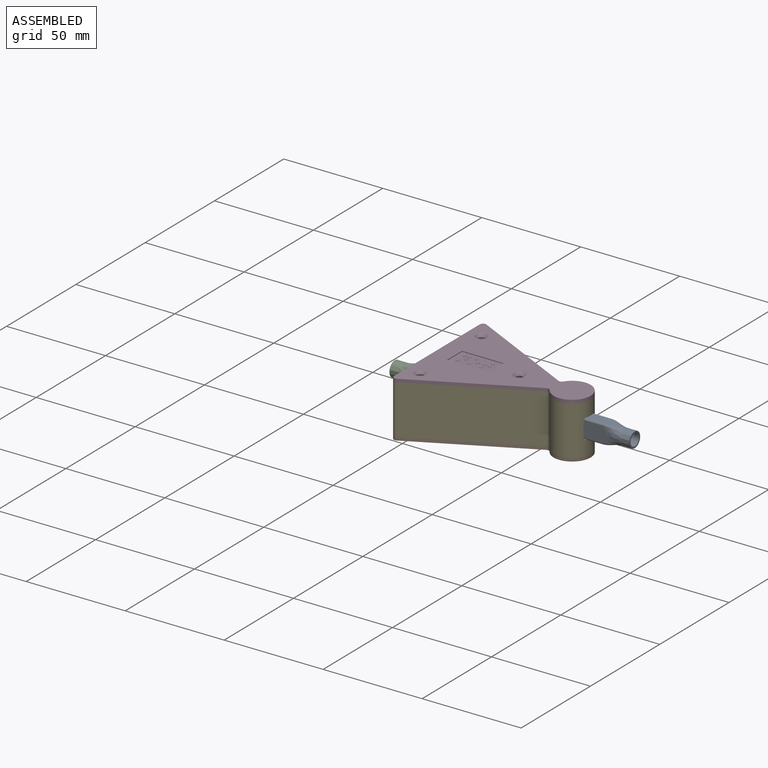
[diagram: assembled view]
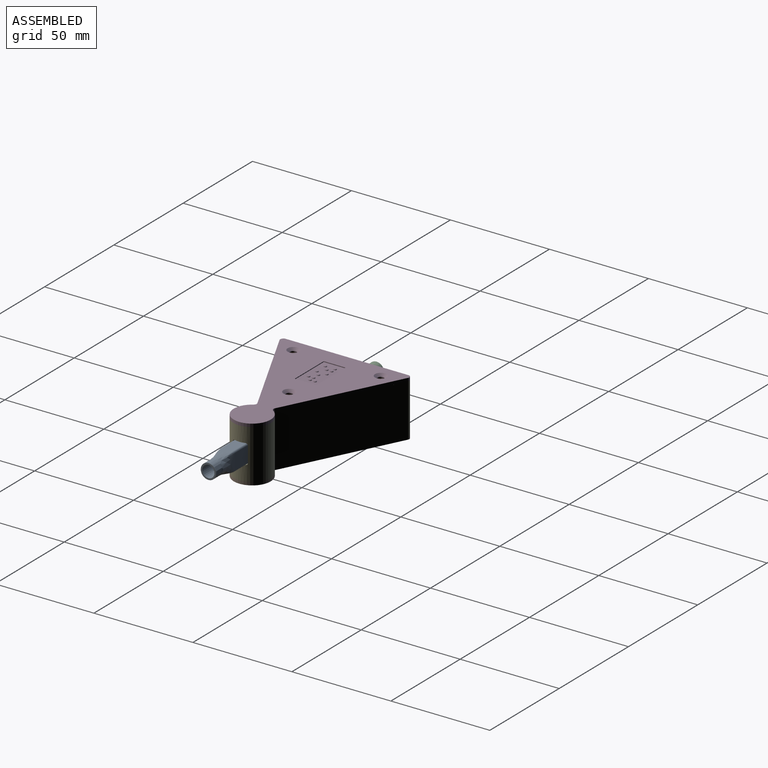
[diagram: assembled view, second angle]
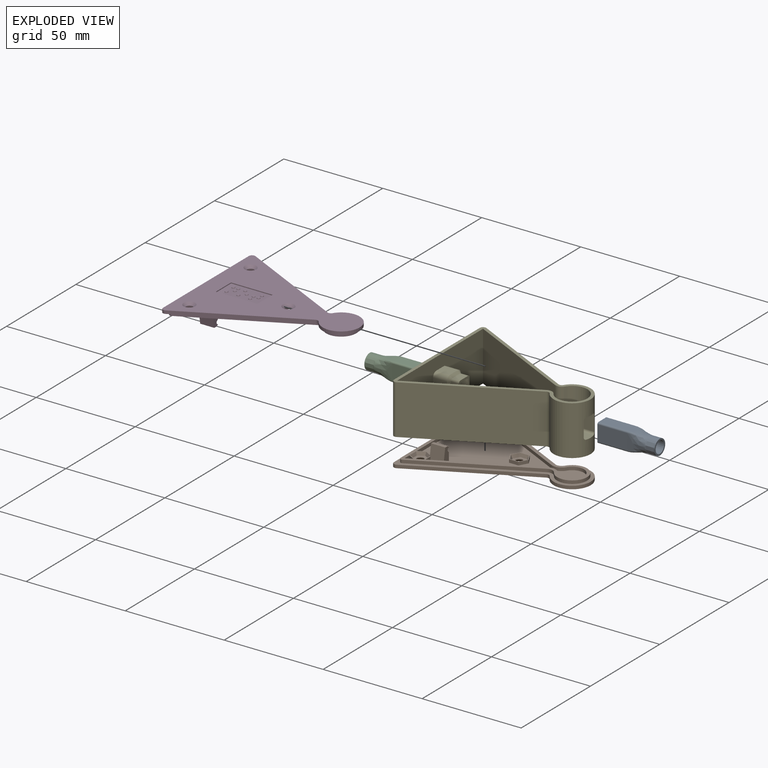
[diagram: exploded view]
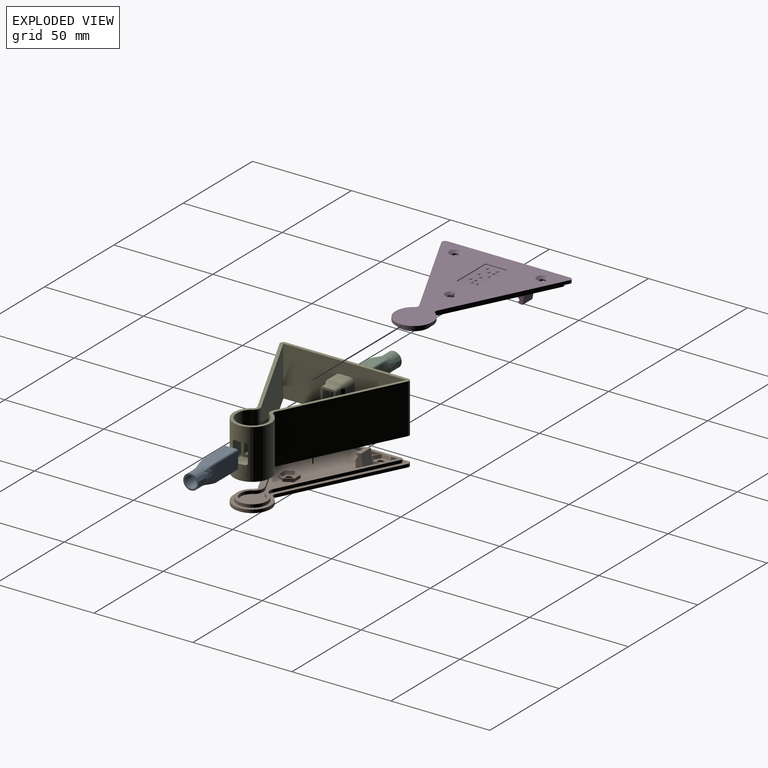
[diagram: exploded view, second angle]
ASSEMBLY  parts=5 mates=3
PART A: 39 faces, bbox 7.7x29.1x9.5 mm
  f0: plane 15.1x5.4mm, normal (0,0,-1), area 81.5mm2, adj f3,f19,f31,f33
  f1: plane 14.1x7.9mm, normal (-1,0,0), area 111.4mm2, adj f2,f3,f7,f9
  f2: plane 14.1x5.4mm, normal (0,0,1), area 76.1mm2, adj f1,f3,f8,f9
  f3: plane 9.5x7mm, normal (0,-1,0), area 23.3mm2, adj f0,f1,f2,f4,f5,f6,f7,f8
  f4: plane 15.1x7.9mm, normal (-1,0,0), area 119.3mm2, adj f3,f21,f31,f35
  f5: plane 15.1x7.9mm, normal (1,0,0), area 119.3mm2, adj f3,f16,f33,f37
  f6: plane 15.1x5.4mm, normal (0,0,1), area 81.5mm2, adj f3,f14,f35,f37
  f7: plane 14.1x5.4mm, normal (0,0,-1), area 76.1mm2, adj f1,f3,f8,f9
  f8: plane 14.1x7.9mm, normal (1,0,0), area 111.4mm2, adj f2,f3,f7,f9
  f9: plane 7.9x5.4mm, normal (0,-1,0), area 10mm2, adj f1,f2,f7,f8,f10,f11,f12,f13
  f10: plane 7.1x1mm, normal (-1,0,0), area 7.1mm2, adj f9,f11,f13,f17
  f11: plane 4.6x1mm, normal (0,0,-1), area 4.6mm2, adj f9,f10,f12,f15
  f12: plane 7.1x1mm, normal (1,0,0), area 7.1mm2, adj f9,f11,f13,f20
  f13: plane 4.6x1mm, normal (0,0,1), area 4.6mm2, adj f9,f10,f12,f18
  f14: bspline ~9x7mm, area 45.2mm2, adj f6,f26,f36,f38
  f15: bspline ~9x4.6mm, area 36.4mm2, adj f11,f17,f20,f22
  f16: bspline ~9.5x9mm, area 69.4mm2, adj f5,f27,f34,f38
  f17: bspline ~9x7.1mm, area 58.2mm2, adj f10,f15,f18,f29
  f18: bspline ~9x4.6mm, area 36.4mm2, adj f13,f17,f20,f24
  f19: bspline ~9x7mm, area 45.2mm2, adj f0,f28,f32,f34
  f20: bspline ~9x7.1mm, area 58.2mm2, adj f12,f15,f18,f23
  f21: bspline ~9.5x9mm, area 69.4mm2, adj f4,f25,f32,f36
  f22: extruded ~5x3.32mm, area 17.5mm2, adj f15,f23,f29,f30
  f23: extruded ~5.12x5mm, area 30.4mm2, adj f20,f22,f24,f30
  f24: extruded ~5x3.32mm, area 17.5mm2, adj f18,f23,f29,f30
  f25: extruded ~6.46x5mm, area 38.3mm2, adj f21,f26,f28,f30
  f26: extruded ~5x4.19mm, area 22.1mm2, adj f14,f25,f27,f30
  f27: extruded ~6.46x5mm, area 38.3mm2, adj f16,f26,f28,f30
  f28: extruded ~5x4.19mm, area 22.1mm2, adj f19,f25,f27,f30
  f29: extruded ~5.12x5mm, area 30.4mm2, adj f17,f22,f24,f30
  f30: plane 7.7x7.7mm, normal (0,1,0), area 17.3mm2, adj f22,f23,f24,f25,f26,f27,f28,f29
  f31: cylinder r=0.8mm len=15.1mm, axis (0,-1,0), area 19mm2, adj f0,f3,f4,f32
  f32: bspline ~10.88x1.52mm, area 4.5mm2, adj f19,f21,f31
  f33: cylinder r=0.8mm len=15.1mm, axis (0,1,0), area 19mm2, adj f0,f3,f5,f34
  f34: bspline ~10.88x1.52mm, area 4.5mm2, adj f16,f19,f33
  f35: cylinder r=0.8mm len=15.1mm, axis (0,1,0), area 19mm2, adj f3,f4,f6,f36
  f36: bspline ~10.88x1.52mm, area 4.5mm2, adj f14,f21,f35
  f37: cylinder r=0.8mm len=15.1mm, axis (0,-1,0), area 19mm2, adj f3,f5,f6,f38
  f38: bspline ~10.88x1.52mm, area 4.5mm2, adj f14,f16,f37
PART B: 121 faces, bbox 77.7x65.2x9 mm
  f0: sphere r=0.81mm, area 2mm2, adj f109,f120
  f1: sphere r=0.81mm, area 2mm2, adj f109,f119
  f2: sphere r=0.81mm, area 2mm2, adj f109,f118
  f3: sphere r=0.81mm, area 2mm2, adj f109,f117
  f4: sphere r=0.81mm, area 2mm2, adj f109,f116
  f5: sphere r=0.81mm, area 2mm2, adj f109,f115
  f6: sphere r=0.81mm, area 2mm2, adj f109,f114
  f7: sphere r=0.81mm, area 2mm2, adj f109,f113
  f8: sphere r=0.81mm, area 2mm2, adj f109,f112
  f9: sphere r=0.81mm, area 2mm2, adj f109,f111
  f10: sphere r=0.81mm, area 2mm2, adj f109,f110
  f11: plane 70.9x41.63mm, normal (0,0,-1), area 1443.9mm2, adj f14,f16,f20,f29,f30,f31,f46,f48
  f12: plane 3.65x1.6mm, normal (1,0,0), area 5.6mm2, adj f19,f20,f35,f90
  f13: plane 6.73x3.37mm, normal (0,0,-1), area 11.3mm2, adj f16,f51,f81
  f14: plane 38.96x1.6mm, normal (1,0,0), area 62.3mm2, adj f11,f35,f46,f50
  f15: plane 3.43x1.6mm, normal (1,0,0), area 5.5mm2, adj f17,f18,f35,f52
  f16: plane 45.63x22.81mm, normal (-0.45,-0.89,0), area 81.6mm2, adj f11,f13,f29,f35,f51
  f17: plane 3.19x1.6mm, normal (-0.45,-0.89,0), area 5.7mm2, adj f15,f18,f35,f52
  f18: plane 3.43x3.19mm, normal (0,0,-1), area 5.5mm2, adj f15,f17,f52
  f19: plane 6.73x3.37mm, normal (0,0,-1), area 11.3mm2, adj f12,f20,f90
  f20: plane 45.63x22.81mm, normal (-0.45,0.89,0), area 81.6mm2, adj f11,f12,f19,f31,f35
  f21: plane 3.43x3.19mm, normal (0,0,-1), area 5.5mm2, adj f32,f33,f47
  f22: cylinder r=7.55mm len=15.1mm, axis (0,0,1), area 62.3mm2, adj f23,f34,f35,f45
  f23: cylinder r=3.4mm len=4.4mm, axis (0,0,1), area 8mm2, adj f22,f24,f35,f45
  f24: plane 54.03x27.01mm, normal (0.45,0.89,0), area 96.6mm2, adj f23,f25,f35,f45
  f25: cylinder r=1.2mm len=1.74mm, axis (0,0,1), area 3.9mm2, adj f24,f26,f35,f45
  f26: plane 57.47x1.6mm, normal (-1,0,0), area 92mm2, adj f25,f27,f35,f45
  f27: cylinder r=1.2mm len=1.74mm, axis (0,0,1), area 3.9mm2, adj f26,f28,f35,f45
  f28: plane 54.03x27.01mm, normal (0.45,-0.89,0), area 96.6mm2, adj f27,f34,f35,f45
  f29: cylinder r=5mm len=6.47mm, axis (0,0,1), area 11.8mm2, adj f11,f16,f30,f35
  f30: cylinder r=5.95mm len=11.9mm, axis (0,0,1), area 49.1mm2, adj f11,f29,f31,f35
  f31: cylinder r=5mm len=6.47mm, axis (0,0,1), area 11.8mm2, adj f11,f20,f30,f35
  f32: plane 3.19x1.6mm, normal (-0.45,0.89,0), area 5.7mm2, adj f21,f33,f35,f47
  f33: plane 3.43x1.6mm, normal (1,0,0), area 5.5mm2, adj f21,f32,f35,f47
  f34: cylinder r=3.4mm len=4.4mm, axis (0,0,1), area 8mm2, adj f22,f28,f35,f45
  f35: plane 74.1x59.87mm, normal (0,0,-1), area 376.5mm2, adj f12,f14,f15,f16,f17,f20,f22,f23
  f36: plane 77.7x65.2mm, normal (0,0,1), area 2184.7mm2, adj f37,f38,f39,f40,f41,f42,f43,f44
  f37: plane 56.05x28.03mm, normal (0.45,0.89,0), area 100.3mm2, adj f36,f38,f44,f45
  f38: cylinder r=1.6mm len=2.07mm, axis (0,0,-1), area 3.8mm2, adj f36,f37,f39,f45
  f39: cylinder r=9.35mm len=18.7mm, axis (0,0,-1), area 77.2mm2, adj f36,f38,f40,f45
  f40: cylinder r=1.6mm len=2.07mm, axis (0,0,-1), area 3.8mm2, adj f36,f39,f41,f45
  f41: plane 56.05x28.03mm, normal (0.45,-0.89,0), area 100.3mm2, adj f36,f40,f42,f45
  f42: cylinder r=1.6mm len=2.32mm, axis (0,0,-1), area 5.2mm2, adj f36,f41,f43,f45
  f43: plane 62x1.6mm, normal (-1,0,0), area 99.2mm2, adj f36,f42,f44,f45
  f44: cylinder r=1.6mm len=2.32mm, axis (0,0,-1), area 5.2mm2, adj f36,f37,f43,f45
  f45: plane 77.7x65.2mm, normal (0,0,-1), area 435.7mm2, adj f22,f23,f24,f25,f26,f27,f28,f34
  f46: plane 3.72x2.15mm, normal (-0.5,0.87,0), area 6.9mm2, adj f11,f14,f35,f48
  f47: plane 3.19x1.84mm, normal (-0.5,-0.87,0), area 5.9mm2, adj f21,f32,f33,f35
  f48: plane 3.7x2.14mm, normal (0.5,0.87,0), area 6.8mm2, adj f11,f35,f46,f91
  f49: plane 7.07x6.12mm, normal (0,0,-1), area 23.4mm2, adj f63,f64,f65,f66,f67,f68,f99
  f50: plane 3.72x2.15mm, normal (-0.5,-0.87,0), area 6.9mm2, adj f11,f14,f35,f53
  f51: plane 3.65x1.6mm, normal (1,0,0), area 5.6mm2, adj f13,f16,f35,f81
  f52: plane 3.19x1.84mm, normal (-0.5,0.87,0), area 5.9mm2, adj f15,f17,f18,f35
  f53: plane 3.7x2.14mm, normal (0.5,-0.87,0), area 6.8mm2, adj f11,f35,f50,f82
  f54: plane 7.07x6.12mm, normal (0,0,-1), area 23.4mm2, adj f69,f70,f71,f72,f73,f74,f101
  f55: plane 9.47x8.2mm, normal (0,0,-1), area 10.8mm2, adj f56,f57,f58,f59,f60,f61,f75,f76
  f56: plane 4.73x1.6mm, normal (0,-1,0), area 7.6mm2, adj f11,f55,f57,f59
  f57: plane 4.1x2.37mm, normal (-0.87,-0.5,0), area 7.6mm2, adj f11,f55,f56,f58
  f58: plane 4.1x2.37mm, normal (-0.87,0.5,0), area 7.6mm2, adj f11,f55,f57,f60
  f59: plane 4.1x2.37mm, normal (0.87,-0.5,0), area 7.6mm2, adj f11,f55,f56,f61
  f60: plane 4.73x1.6mm, normal (0,1,0), area 7.6mm2, adj f11,f55,f58,f61
  f61: plane 4.1x2.37mm, normal (0.87,0.5,0), area 7.6mm2, adj f11,f55,f59,f60
  f62: plane 7.07x6.12mm, normal (0,0,-1), area 23.4mm2, adj f75,f76,f77,f78,f79,f80,f103
  f63: plane 3.7x2.51mm, normal (-0.46,0.8,-0.37), area 6.7mm2, adj f35,f49,f64,f65
  f64: plane 3.7x2.51mm, normal (0.46,0.8,-0.37), area 6.7mm2, adj f35,f49,f63,f66
  f65: plane 4.27x1.6mm, normal (-0.93,0,-0.37), area 6.7mm2, adj f35,f49,f63,f67,f91
  f66: plane 4.27x1.6mm, normal (0.93,0,-0.37), area 6.7mm2, adj f35,f49,f64,f68
  f67: plane 3.7x2.51mm, normal (-0.46,-0.8,-0.37), area 6.7mm2, adj f35,f49,f65,f68
  f68: plane 3.7x2.51mm, normal (0.46,-0.8,-0.37), area 6.7mm2, adj f35,f49,f66,f67
  f69: plane 3.7x2.51mm, normal (-0.46,0.8,-0.37), area 6.7mm2, adj f35,f54,f70,f71
  f70: plane 4.27x1.6mm, normal (-0.93,0,-0.37), area 6.7mm2, adj f35,f54,f69,f72,f82
  f71: plane 3.7x2.51mm, normal (0.46,0.8,-0.37), area 6.7mm2, adj f35,f54,f69,f73
  f72: plane 3.7x2.51mm, normal (-0.46,-0.8,-0.37), area 6.7mm2, adj f35,f54,f70,f74
  f73: plane 4.27x1.6mm, normal (0.93,0,-0.37), area 6.7mm2, adj f35,f54,f71,f74
  f74: plane 3.7x2.51mm, normal (0.46,-0.8,-0.37), area 6.7mm2, adj f35,f54,f72,f73
  f75: plane 3.7x2.51mm, normal (-0.8,0.46,-0.37), area 6.7mm2, adj f55,f62,f76,f77
  f76: plane 4.27x1.6mm, normal (0,0.93,-0.37), area 6.7mm2, adj f55,f62,f75,f78
  f77: plane 3.7x2.51mm, normal (-0.8,-0.46,-0.37), area 6.7mm2, adj f55,f62,f75,f79
  f78: plane 3.7x2.51mm, normal (0.8,0.46,-0.37), area 6.7mm2, adj f55,f62,f76,f80
  f79: plane 4.27x1.6mm, normal (0,-0.93,-0.37), area 6.7mm2, adj f55,f62,f77,f80
  f80: plane 3.7x2.51mm, normal (0.8,-0.46,-0.37), area 6.7mm2, adj f55,f62,f78,f79
  f81: plane 7.13x7.11mm, normal (0,0.98,-0.17), area 50.8mm2, adj f13,f35,f51,f82,f88,f89
  f82: plane 7.11x3.58mm, normal (-1,0,0), area 19.2mm2, adj f11,f35,f53,f70,f81,f83,f84,f85
  f83: plane 7.13x4.05mm, normal (0,-1,0), area 28.9mm2, adj f11,f82,f84,f88
  f84: plane 7.13x0.95mm, normal (0,-0.71,-0.71), area 9.6mm2, adj f82,f83,f85,f88
  f85: plane 7.13x0.7mm, normal (0,-1,0), area 5mm2, adj f82,f84,f86,f88
  f86: plane 7.13x0.95mm, normal (0,-0.71,0.71), area 9.6mm2, adj f82,f85,f87,f88
  f87: plane 7.13x1.26mm, normal (0,-0.34,-0.94), area 9.6mm2, adj f82,f86,f88,f89
  f88: plane 7.11x3.86mm, normal (1,0,0), area 21.2mm2, adj f11,f81,f83,f84,f85,f86,f87,f89
  f89: plane 7.13x1.35mm, normal (0,0,-1), area 9.6mm2, adj f81,f82,f87,f88
  f90: plane 7.13x7.11mm, normal (0,-0.98,-0.17), area 50.8mm2, adj f12,f19,f35,f91,f92,f98
  f91: plane 7.11x3.58mm, normal (-1,0,0), area 19.2mm2, adj f11,f35,f48,f65,f90,f92,f93,f94
  f92: plane 7.13x1.35mm, normal (0,0,-1), area 9.6mm2, adj f90,f91,f93,f98
  f93: plane 7.13x1.26mm, normal (0,0.34,-0.94), area 9.6mm2, adj f91,f92,f94,f98
  f94: plane 7.13x0.95mm, normal (0,0.71,0.71), area 9.6mm2, adj f91,f93,f95,f98
  f95: plane 7.13x0.7mm, normal (0,1,0), area 5mm2, adj f91,f94,f96,f98
  f96: plane 7.13x0.95mm, normal (0,0.71,-0.71), area 9.6mm2, adj f91,f95,f97,f98
  f97: plane 7.13x4.05mm, normal (0,1,0), area 28.9mm2, adj f11,f91,f96,f98
  f98: plane 7.11x3.86mm, normal (1,0,0), area 21.2mm2, adj f11,f90,f92,f93,f94,f95,f96,f97
  f99: cylinder r=1.7mm len=3.4mm, axis (0,0,1), area 3.7mm2, adj f49,f100
  f100: cone r=1.7mm half-angle=45deg, axis (0,0,1), area 25.8mm2, adj f36,f99
  f101: cylinder r=1.7mm len=3.4mm, axis (0,0,1), area 3.7mm2, adj f54,f102
  f102: cone r=1.7mm half-angle=45deg, axis (0,0,1), area 25.8mm2, adj f36,f101
  f103: cylinder r=1.7mm len=3.4mm, axis (0,0,1), area 3.7mm2, adj f62,f104
  f104: cone r=1.7mm half-angle=45deg, axis (0,0,1), area 25.8mm2, adj f36,f103
  f105: plane 11x0.4mm, normal (-1,0,0), area 4.4mm2, adj f36,f106,f108,f109
  f106: plane 21x0.4mm, normal (0,-1,0), area 8.4mm2, adj f36,f105,f107,f109
  f107: plane 11x0.4mm, normal (1,0,0), area 4.4mm2, adj f36,f106,f108,f109
  f108: plane 21x0.4mm, normal (0,1,0), area 8.4mm2, adj f36,f105,f107,f109
  f109: plane 21x11mm, normal (0,0,1), area 208.9mm2, adj f0,f1,f2,f3,f4,f5,f6,f7
  f110: plane 1.26x1.26mm, normal (0,0,1), area 1.2mm2, adj f10
  f111: plane 1.26x1.26mm, normal (0,0,1), area 1.2mm2, adj f9
  f112: plane 1.26x1.26mm, normal (0,0,1), area 1.2mm2, adj f8
  f113: plane 1.26x1.26mm, normal (0,0,1), area 1.2mm2, adj f7
  f114: plane 1.26x1.26mm, normal (0,0,1), area 1.2mm2, adj f6
  f115: plane 1.26x1.26mm, normal (0,0,1), area 1.2mm2, adj f5
  f116: plane 1.26x1.26mm, normal (0,0,1), area 1.2mm2, adj f4
  f117: plane 1.26x1.26mm, normal (0,0,1), area 1.2mm2, adj f3
  f118: plane 1.26x1.26mm, normal (0,0,1), area 1.2mm2, adj f2
  f119: plane 1.26x1.26mm, normal (0,0,1), area 1.2mm2, adj f1
  f120: plane 1.26x1.26mm, normal (0,0,1), area 1.2mm2, adj f0
PART C: same geometry as A
PART D: same geometry as B
PART E: 102 faces, bbox 77.7x65.2x25 mm
  f0: cylinder r=9.35mm len=25mm, axis (0,0,-1), area 1128mm2, adj f4,f7,f8,f15,f94,f95,f96,f97
  f1: cylinder r=7.75mm len=25mm, axis (0,0,-1), area 869.3mm2, adj f4,f11,f14,f15,f82,f83,f86,f87
  f2: plane 62x25mm, normal (1,0,0), area 1429.5mm2, adj f4,f12,f13,f15,f26,f27,f28,f29
  f3: plane 62x25mm, normal (-1,0,0), area 1474.3mm2, adj f4,f5,f10,f15,f16,f17,f18,f19
  f4: plane 77.7x65.2mm, normal (0,0,1), area 386.8mm2, adj f0,f1,f2,f3,f5,f6,f7,f8
  f5: cylinder r=1.6mm len=25mm, axis (0,0,-1), area 81.4mm2, adj f3,f4,f6,f15
  f6: plane 56.05x28.03mm, normal (0.45,-0.89,0), area 1566.7mm2, adj f4,f5,f7,f15
  f7: cylinder r=1.6mm len=25mm, axis (0,0,-1), area 58.9mm2, adj f0,f4,f6,f15
  f8: cylinder r=1.6mm len=25mm, axis (0,0,-1), area 58.9mm2, adj f0,f4,f9,f15
  f9: plane 56.05x28.03mm, normal (0.45,0.89,0), area 1566.7mm2, adj f4,f8,f10,f15
  f10: cylinder r=1.6mm len=25mm, axis (0,0,-1), area 81.4mm2, adj f3,f4,f9,f15
  f11: cylinder r=3.2mm len=25mm, axis (0,0,-1), area 117.8mm2, adj f1,f4,f12,f15
  f12: plane 56.05x28.03mm, normal (-0.45,0.89,0), area 1566.7mm2, adj f2,f4,f11,f15
  f13: plane 56.05x28.03mm, normal (-0.45,-0.89,0), area 1566.7mm2, adj f2,f4,f14,f15
  f14: cylinder r=3.2mm len=25mm, axis (0,0,-1), area 117.8mm2, adj f1,f4,f13,f15
  f15: plane 77.7x65.2mm, normal (0,0,-1), area 386.8mm2, adj f0,f1,f2,f3,f5,f6,f7,f8
  f16: cylinder r=1.1mm len=7.8mm, axis (-1,0,0), area 13.5mm2, adj f3,f17,f23,f24
  f17: plane 7.8x5.4mm, normal (0,0,-1), area 42.1mm2, adj f3,f16,f18,f24
  f18: cylinder r=1.1mm len=7.8mm, axis (-1,0,0), area 13.5mm2, adj f3,f17,f19,f24
  f19: plane 7.9x7.8mm, normal (0,-1,0), area 61.6mm2, adj f3,f18,f20,f24
  f20: cylinder r=1.1mm len=7.8mm, axis (-1,0,0), area 13.5mm2, adj f3,f19,f21,f24
  f21: plane 7.8x5.4mm, normal (0,0,1), area 42.1mm2, adj f3,f20,f22,f24
  f22: cylinder r=1.1mm len=7.8mm, axis (-1,0,0), area 13.5mm2, adj f3,f21,f23,f24
  f23: plane 7.9x7.8mm, normal (0,1,0), area 61.6mm2, adj f3,f16,f22,f24
  f24: plane 10.1x7.6mm, normal (-1,0,0), area 43.1mm2, adj f16,f17,f18,f19,f20,f21,f22,f23
  f25: plane 7.9x5.4mm, normal (1,0,0), area 10mm2, adj f31,f32,f36,f37,f38,f39,f40,f49
  f26: plane 7.9x7mm, normal (0,1,0), area 55.3mm2, adj f2,f27,f34,f58
  f27: cylinder r=2.3mm len=7mm, axis (-1,0,0), area 25.3mm2, adj f2,f26,f28,f57
  f28: plane 7x5.4mm, normal (0,0,1), area 37.8mm2, adj f2,f27,f29,f55
  f29: cylinder r=2.3mm len=7mm, axis (-1,0,0), area 25.3mm2, adj f2,f28,f30,f53
  f30: plane 7.9x7mm, normal (0,-1,0), area 55.3mm2, adj f2,f29,f33,f51
  f31: plane 4.6x0.8mm, normal (0,0,1), area 3.7mm2, adj f24,f25,f32,f36
  f32: plane 7.1x0.8mm, normal (0,-1,0), area 5.7mm2, adj f24,f25,f31,f37
  f33: cylinder r=2.3mm len=7mm, axis (-1,0,0), area 25.3mm2, adj f2,f30,f35,f52
  f34: cylinder r=2.3mm len=7mm, axis (-1,0,0), area 25.3mm2, adj f2,f26,f35,f56
  f35: plane 7x5.4mm, normal (0,0,-1), area 37.8mm2, adj f2,f33,f34,f54
  f36: plane 7.1x0.8mm, normal (0,1,0), area 5.7mm2, adj f24,f25,f31,f37
  f37: plane 4.6x0.8mm, normal (0,0,-1), area 3.7mm2, adj f24,f25,f32,f36
  f38: plane 5.4x5.2mm, normal (0,0,-1), area 28.1mm2, adj f25,f39,f49,f50
  f39: plane 7.9x5.2mm, normal (0,-1,0), area 41.1mm2, adj f25,f38,f40,f50
  f40: plane 5.4x5.2mm, normal (0,0,1), area 28.1mm2, adj f25,f39,f49,f50
  f41: cylinder r=1.1mm len=4mm, axis (-1,0,0), area 6.9mm2, adj f42,f48,f50,f56
  f42: plane 7.9x4mm, normal (0,1,0), area 31.6mm2, adj f41,f43,f50,f58
  f43: cylinder r=1.1mm len=4mm, axis (-1,0,0), area 6.9mm2, adj f42,f44,f50,f57
  f44: plane 5.4x4mm, normal (0,0,1), area 21.6mm2, adj f43,f45,f50,f55
  f45: cylinder r=1.1mm len=4mm, axis (-1,0,0), area 6.9mm2, adj f44,f46,f50,f53
  f46: plane 7.9x4mm, normal (0,-1,0), area 31.6mm2, adj f45,f47,f50,f51
  f47: cylinder r=1.1mm len=4mm, axis (-1,0,0), area 6.9mm2, adj f46,f48,f50,f52
  f48: plane 5.4x4mm, normal (0,0,-1), area 21.6mm2, adj f41,f47,f50,f54
  f49: plane 7.9x5.2mm, normal (0,1,0), area 41.1mm2, adj f25,f38,f40,f50
  f50: plane 10.1x7.6mm, normal (1,0,0), area 33.1mm2, adj f38,f39,f40,f41,f42,f43,f44,f45
  f51: plane 7.9x1.2mm, normal (0.71,-0.71,0), area 13.4mm2, adj f30,f46,f52,f53
  f52: cone r=1.1mm half-angle=45deg, axis (-1,0,0), area 4.5mm2, adj f33,f47,f51,f54
  f53: cone r=1.1mm half-angle=45deg, axis (-1,0,0), area 4.5mm2, adj f29,f45,f51,f55
  f54: plane 5.4x1.2mm, normal (0.71,0,-0.71), area 9.2mm2, adj f35,f48,f52,f56
  f55: plane 5.4x1.2mm, normal (0.71,0,0.71), area 9.2mm2, adj f28,f44,f53,f57
  f56: cone r=1.1mm half-angle=45deg, axis (-1,0,0), area 4.5mm2, adj f34,f41,f54,f58
  f57: cone r=1.1mm half-angle=45deg, axis (-1,0,0), area 4.5mm2, adj f27,f43,f55,f58
  f58: plane 7.9x1.2mm, normal (0.71,0.71,0), area 13.4mm2, adj f26,f42,f56,f57
  f59: plane 7.9x1.2mm, normal (-0.71,-0.71,0), area 13.4mm2, adj f60,f61,f75,f89
  f60: cone r=1.1mm half-angle=45deg, axis (1,0,0), area 4.5mm2, adj f59,f62,f74,f88
  f61: cone r=1.1mm half-angle=45deg, axis (1,0,0), area 4.5mm2, adj f59,f63,f76,f82
  f62: plane 5.4x1.2mm, normal (-0.71,0,0.71), area 9.2mm2, adj f60,f64,f73,f93
  f63: plane 5.4x1.2mm, normal (-0.71,0,-0.71), area 9.2mm2, adj f61,f65,f69,f92
  f64: cone r=1.1mm half-angle=45deg, axis (1,0,0), area 4.5mm2, adj f62,f66,f72,f87
  f65: cone r=1.1mm half-angle=45deg, axis (1,0,0), area 4.5mm2, adj f63,f66,f70,f83
  f66: plane 7.9x1.2mm, normal (-0.71,0.71,0), area 13.4mm2, adj f64,f65,f71,f86
  f67: plane 10.1x7.6mm, normal (-1,0,0), area 33.1mm2, adj f68,f69,f70,f71,f72,f73,f74,f75
  f68: plane 7.9x5.2mm, normal (0,-1,0), area 41.1mm2, adj f67,f77,f79,f90
  f69: plane 5.4x4mm, normal (0,0,-1), area 21.6mm2, adj f63,f67,f70,f76
  f70: cylinder r=1.1mm len=4mm, axis (1,0,0), area 6.9mm2, adj f65,f67,f69,f71
  f71: plane 7.9x4mm, normal (0,1,0), area 31.6mm2, adj f66,f67,f70,f72
  f72: cylinder r=1.1mm len=4mm, axis (1,0,0), area 6.9mm2, adj f64,f67,f71,f73
  f73: plane 5.4x4mm, normal (0,0,1), area 21.6mm2, adj f62,f67,f72,f74
  f74: cylinder r=1.1mm len=4mm, axis (1,0,0), area 6.9mm2, adj f60,f67,f73,f75
  f75: plane 7.9x4mm, normal (0,-1,0), area 31.6mm2, adj f59,f67,f74,f76
  f76: cylinder r=1.1mm len=4mm, axis (1,0,0), area 6.9mm2, adj f61,f67,f69,f75
  f77: plane 5.4x5.2mm, normal (0,0,1), area 28.1mm2, adj f67,f68,f78,f90
  f78: plane 7.9x5.2mm, normal (0,1,0), area 41.1mm2, adj f67,f77,f79,f90
  f79: plane 5.4x5.2mm, normal (0,0,-1), area 28.1mm2, adj f67,f68,f78,f90
  f80: plane 4.6x0.8mm, normal (0,0,-1), area 3.7mm2, adj f81,f84,f90,f91
  f81: plane 7.1x0.8mm, normal (0,-1,0), area 5.7mm2, adj f80,f85,f90,f91
  f82: cylinder r=2.3mm len=5.51mm, axis (1,0,0), area 17.1mm2, adj f1,f61,f89,f92
  f83: cylinder r=2.3mm len=5.51mm, axis (1,0,0), area 17.1mm2, adj f1,f65,f86,f92
  f84: plane 7.1x0.8mm, normal (0,1,0), area 5.7mm2, adj f80,f85,f90,f91
  f85: plane 4.6x0.8mm, normal (0,0,1), area 3.7mm2, adj f81,f84,f90,f91
  f86: plane 7.9x4.17mm, normal (0,1,0), area 33mm2, adj f1,f66,f83,f87
  f87: cylinder r=2.3mm len=5.51mm, axis (1,0,0), area 17.1mm2, adj f1,f64,f86,f93
  f88: cylinder r=2.3mm len=5.51mm, axis (1,0,0), area 17.1mm2, adj f1,f60,f89,f93
  f89: plane 7.9x4.17mm, normal (0,-1,0), area 33mm2, adj f1,f59,f82,f88
  f90: plane 7.9x5.4mm, normal (-1,0,0), area 10mm2, adj f68,f77,f78,f79,f80,f81,f84,f85
  f91: plane 10.1x7.6mm, normal (1,0,0), area 43.1mm2, adj f80,f81,f84,f85,f94,f95,f96,f97
  f92: plane 6x5.4mm, normal (0,0,-1), area 31.5mm2, adj f1,f63,f82,f83
  f93: plane 6x5.4mm, normal (0,0,1), area 31.5mm2, adj f1,f62,f87,f88
  f94: plane 7.9x5.99mm, normal (0,1,0), area 47.3mm2, adj f0,f91,f95,f101
  f95: cylinder r=1.1mm len=6.4mm, axis (1,0,0), area 10.6mm2, adj f0,f91,f94,f96
  f96: plane 6.8x5.4mm, normal (0,0,-1), area 36mm2, adj f0,f91,f95,f97
  f97: cylinder r=1.1mm len=6.4mm, axis (1,0,0), area 10.6mm2, adj f0,f91,f96,f98
  f98: plane 7.9x5.99mm, normal (0,-1,0), area 47.3mm2, adj f0,f91,f97,f99
  f99: cylinder r=1.1mm len=6.4mm, axis (1,0,0), area 10.6mm2, adj f0,f91,f98,f100
  f100: plane 6.8x5.4mm, normal (0,0,1), area 36mm2, adj f0,f91,f99,f101
  f101: cylinder r=1.1mm len=6.4mm, axis (1,0,0), area 10.6mm2, adj f0,f91,f94,f100
PLACE A rot(axis=(0.71,0.71,0),180deg) t=(38.3,0,12.5)mm
PLACE B rot(axis=(1,0,0),180deg) t=(0,0,25)mm
PLACE C rot(axis=(0,0,1),90deg) t=(-24.8,0,12.5)mm
PLACE D at identity fixed
PLACE E at identity fixed
MATE fastened E.f91 <-> A.f3  axis (1,0,0) through (38.3,0,12.5)mm
MATE fastened E.f24 <-> C.f3  axis (-1,0,0) through (-24.8,0,12.5)mm
MATE fastened B.f45 <-> E.f15  axis (0,0,1) through (-30.28,-32.43,0)mm
